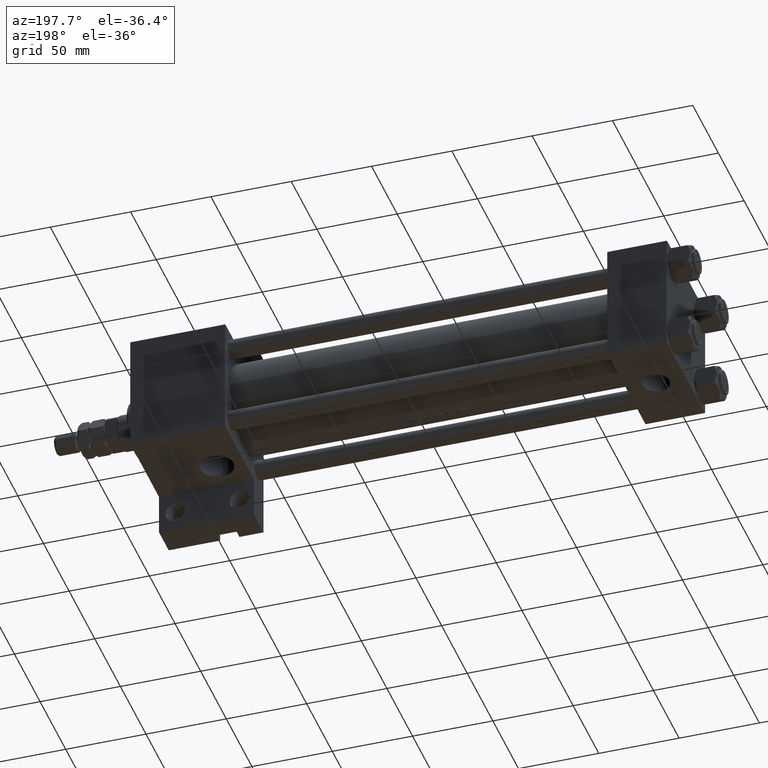
[diagram: clean part render]
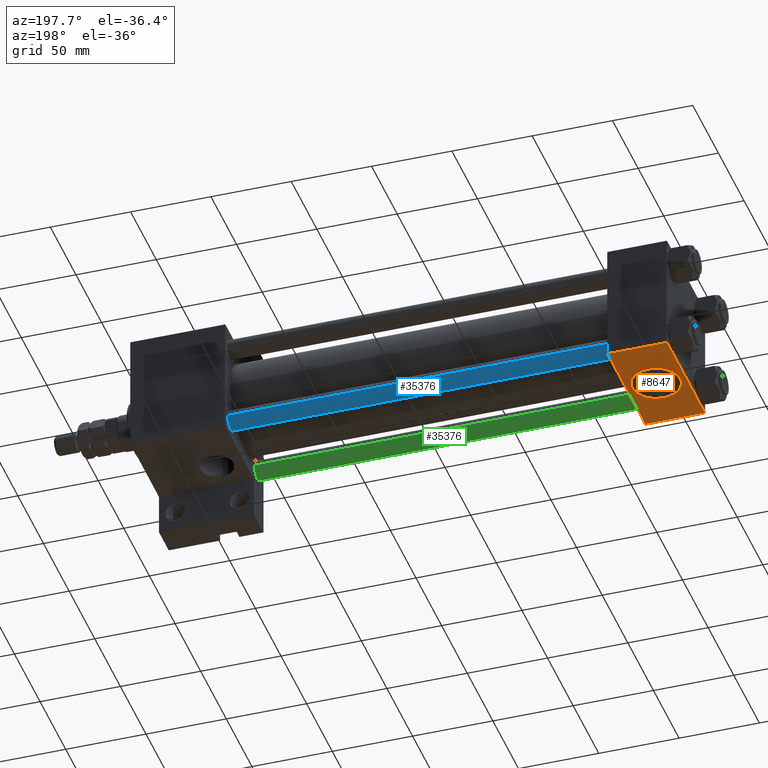
[diagram: same view with three faces highlighted in distinct colors, each labeled with its STEP entity id]
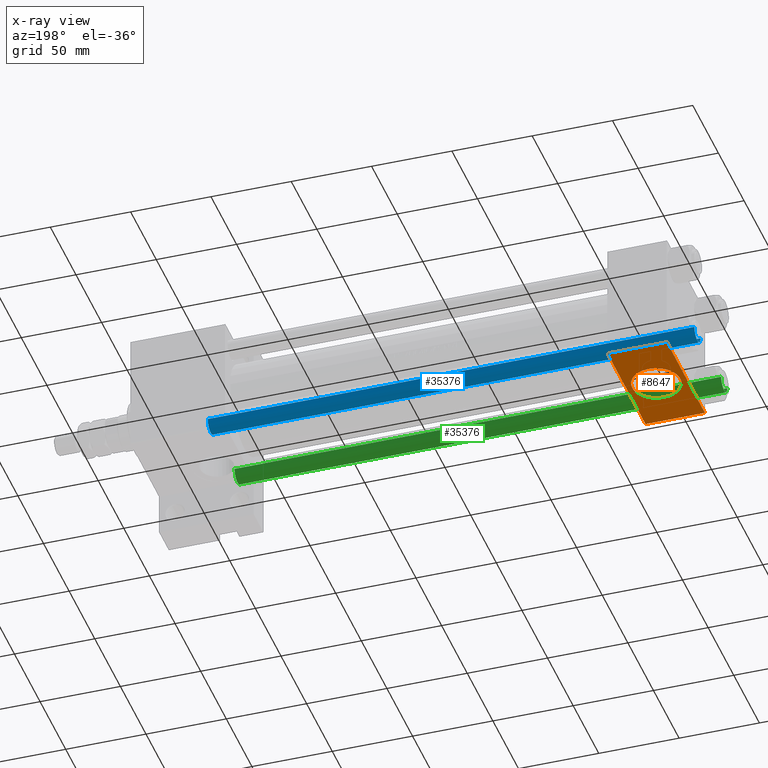
[diagram: x-ray of the same camera — body ghosted, the three highlighted faces saturated]
A machine part, auxiliary view with three faces highlighted in distinct colors.
The next image is the same camera in x-ray (body ghosted, the three faces saturated) — at least one of them is partly hidden behind the body in this view.
Their STEP definitions:

[orange] entity #8647 — the highlighted planar face has unit normal (0, 0, -1).
#1236 = AXIS2_PLACEMENT_3D ( 'NONE', #2236, #39045, #32575 ) ;
#1308 = CARTESIAN_POINT ( 'NONE',  ( 18.50000000000000000, 37.49999999999999289, 0.000000000000000000 ) ) ;
#2236 = CARTESIAN_POINT ( 'NONE',  ( 37.00000000000000000, 37.49999999999999289, 37.50000000000000000 ) ) ;
#2377 = EDGE_CURVE ( 'NONE', #43973, #38912, #40234, .T. ) ;
#2994 = CARTESIAN_POINT ( 'NONE',  ( 18.50000000000000000, 37.49999999999999289, 15.00000000000000178 ) ) ;
#5393 = LINE ( 'NONE', #20546, #36639 ) ;
#5772 = DIRECTION ( 'NONE',  ( 0.000000000000000000, 0.000000000000000000, 1.000000000000000000 ) ) ;
#5916 = DIRECTION ( 'NONE',  ( 0.000000000000000000, 0.000000000000000000, -1.000000000000000000 ) ) ;
#7005 = LINE ( 'NONE', #45736, #18680 ) ;
#7505 = CIRCLE ( 'NONE', #24187, 15.00000000000000178 ) ;
#7920 = CARTESIAN_POINT ( 'NONE',  ( 18.50000000000000000, 37.49999999999999289, 0.000000000000000000 ) ) ;
#8573 = CARTESIAN_POINT ( 'NONE',  ( 0.000000000000000000, 37.49999999999999289, 37.50000000000000000 ) ) ;
#8627 = VERTEX_POINT ( 'NONE', #31592 ) ;
#8647 = ADVANCED_FACE ( 'NONE', ( #47263, #28358 ), #36315, .T. ) ;
#10619 = VERTEX_POINT ( 'NONE', #26119 ) ;
#11641 = DIRECTION ( 'NONE',  ( 1.000000000000000000, 0.000000000000000000, 0.000000000000000000 ) ) ;
#12486 = DIRECTION ( 'NONE',  ( 0.000000000000000000, 1.000000000000000000, 0.000000000000000000 ) ) ;
#12754 = EDGE_LOOP ( 'NONE', ( #39817, #42628 ) ) ;
#15422 = EDGE_CURVE ( 'NONE', #38912, #8627, #5393, .T. ) ;
#15620 = DIRECTION ( 'NONE',  ( 0.000000000000000000, 1.000000000000000000, 0.000000000000000000 ) ) ;
#15791 = DIRECTION ( 'NONE',  ( 0.000000000000000000, 0.000000000000000000, -1.000000000000000000 ) ) ;
#17307 = DIRECTION ( 'NONE',  ( -1.000000000000000000, 0.000000000000000000, 0.000000000000000000 ) ) ;
#18317 = CARTESIAN_POINT ( 'NONE',  ( 18.50000000000000355, 37.49999999999999289, -15.00000000000000178 ) ) ;
#18680 = VECTOR ( 'NONE', #11641, 1000.000000000000000 ) ;
#20201 = AXIS2_PLACEMENT_3D ( 'NONE', #1308, #12486, #5772 ) ;
#20546 = CARTESIAN_POINT ( 'NONE',  ( 37.00000000000000000, 37.49999999999999289, -36.99999999999998579 ) ) ;
#20795 = EDGE_CURVE ( 'NONE', #23788, #46061, #26529, .T. ) ;
#21170 = EDGE_CURVE ( 'NONE', #46061, #23788, #7505, .T. ) ;
#23788 = VERTEX_POINT ( 'NONE', #2994 ) ;
#24187 = AXIS2_PLACEMENT_3D ( 'NONE', #7920, #15620, #30057 ) ;
#24706 = ORIENTED_EDGE ( 'NONE', *, *, #2377, .T. ) ;
#24832 = VECTOR ( 'NONE', #15791, 1000.000000000000000 ) ;
#25188 = EDGE_LOOP ( 'NONE', ( #24706, #38192, #39890, #25244 ) ) ;
#25244 = ORIENTED_EDGE ( 'NONE', *, *, #34216, .T. ) ;
#26119 = CARTESIAN_POINT ( 'NONE',  ( 0.000000000000000000, 37.49999999999999289, 37.00000000000000000 ) ) ;
#26529 = CIRCLE ( 'NONE', #20201, 15.00000000000000178 ) ;
#28358 = FACE_OUTER_BOUND ( 'NONE', #25188, .T. ) ;
#30057 = DIRECTION ( 'NONE',  ( 0.000000000000000000, 0.000000000000000000, 1.000000000000000000 ) ) ;
#31462 = CARTESIAN_POINT ( 'NONE',  ( 37.00000000000000000, 37.49999999999999289, 37.00000000000000000 ) ) ;
#31592 = CARTESIAN_POINT ( 'NONE',  ( 0.000000000000000000, 37.49999999999999289, -36.99999999999998579 ) ) ;
#32575 = DIRECTION ( 'NONE',  ( 0.000000000000000000, -0.000000000000000000, 1.000000000000000000 ) ) ;
#34216 = EDGE_CURVE ( 'NONE', #10619, #43973, #7005, .T. ) ;
#36315 = PLANE ( 'NONE',  #1236 ) ;
#36639 = VECTOR ( 'NONE', #17307, 1000.000000000000000 ) ;
#36735 = CARTESIAN_POINT ( 'NONE',  ( 37.00000000000000000, 37.49999999999999289, 37.50000000000000000 ) ) ;
#37680 = LINE ( 'NONE', #8573, #24832 ) ;
#38192 = ORIENTED_EDGE ( 'NONE', *, *, #15422, .T. ) ;
#38912 = VERTEX_POINT ( 'NONE', #39138 ) ;
#39045 = DIRECTION ( 'NONE',  ( -0.000000000000000000, 1.000000000000000000, 0.000000000000000000 ) ) ;
#39138 = CARTESIAN_POINT ( 'NONE',  ( 37.00000000000000000, 37.49999999999999289, -36.99999999999998579 ) ) ;
#39817 = ORIENTED_EDGE ( 'NONE', *, *, #20795, .F. ) ;
#39890 = ORIENTED_EDGE ( 'NONE', *, *, #40228, .F. ) ;
#40228 = EDGE_CURVE ( 'NONE', #10619, #8627, #37680, .T. ) ;
#40234 = LINE ( 'NONE', #36735, #41706 ) ;
#41706 = VECTOR ( 'NONE', #5916, 1000.000000000000000 ) ;
#42628 = ORIENTED_EDGE ( 'NONE', *, *, #21170, .F. ) ;
#43973 = VERTEX_POINT ( 'NONE', #31462 ) ;
#45736 = CARTESIAN_POINT ( 'NONE',  ( 37.00000000000000000, 37.49999999999999289, 37.00000000000000000 ) ) ;
#46061 = VERTEX_POINT ( 'NONE', #18317 ) ;
#47263 = FACE_BOUND ( 'NONE', #12754, .T. ) ;

[blue] entity #35376 — the highlighted cylindrical surface (edge-blend (fillet) strip) has radius 6 mm, axis along (-1, -0, 0).
#1230 = CIRCLE ( 'NONE', #17136, 6.000000000000000888 ) ;
#1759 = CARTESIAN_POINT ( 'NONE',  ( 6.000000000000000888, 7.347880794884120722E-16, 0.4999999999999449329 ) ) ;
#1835 = VERTEX_POINT ( 'NONE', #23156 ) ;
#3181 = EDGE_LOOP ( 'NONE', ( #41210, #48931, #8118, #27016 ) ) ;
#5608 = CARTESIAN_POINT ( 'NONE',  ( -6.000000000000000888, 0.000000000000000000, 304.0000000000000000 ) ) ;
#8118 = ORIENTED_EDGE ( 'NONE', *, *, #14355, .T. ) ;
#8737 = FACE_OUTER_BOUND ( 'NONE', #3181, .T. ) ;
#14355 = EDGE_CURVE ( 'NONE', #1835, #30058, #34041, .T. ) ;
#14779 = AXIS2_PLACEMENT_3D ( 'NONE', #31362, #42815, #35603 ) ;
#16097 = EDGE_CURVE ( 'NONE', #34842, #23646, #19296, .T. ) ;
#17136 = AXIS2_PLACEMENT_3D ( 'NONE', #42725, #38977, #20814 ) ;
#19296 = LINE ( 'NONE', #37966, #28709 ) ;
#19553 = DIRECTION ( 'NONE',  ( -0.000000000000000000, -0.000000000000000000, -1.000000000000000000 ) ) ;
#20814 = DIRECTION ( 'NONE',  ( 1.000000000000000000, 0.000000000000000000, 0.000000000000000000 ) ) ;
#23156 = CARTESIAN_POINT ( 'NONE',  ( -6.000000000000000888, 0.000000000000000000, 303.5000000000000000 ) ) ;
#23646 = VERTEX_POINT ( 'NONE', #1759 ) ;
#25157 = CIRCLE ( 'NONE', #31505, 6.000000000000000888 ) ;
#25317 = CYLINDRICAL_SURFACE ( 'NONE', #14779, 6.000000000000000888 ) ;
#27016 = ORIENTED_EDGE ( 'NONE', *, *, #33562, .T. ) ;
#27980 = DIRECTION ( 'NONE',  ( -0.000000000000000000, -0.000000000000000000, -1.000000000000000000 ) ) ;
#28709 = VECTOR ( 'NONE', #19553, 1000.000000000000000 ) ;
#30058 = VERTEX_POINT ( 'NONE', #31485 ) ;
#30272 = CARTESIAN_POINT ( 'NONE',  ( 0.000000000000000000, 0.000000000000000000, 303.5000000000000000 ) ) ;
#31362 = CARTESIAN_POINT ( 'NONE',  ( 0.000000000000000000, 0.000000000000000000, 304.0000000000000000 ) ) ;
#31485 = CARTESIAN_POINT ( 'NONE',  ( -6.000000000000000888, 0.000000000000000000, 0.4999999999999449329 ) ) ;
#31505 = AXIS2_PLACEMENT_3D ( 'NONE', #30272, #42465, #34259 ) ;
#33562 = EDGE_CURVE ( 'NONE', #30058, #23646, #1230, .T. ) ;
#34041 = LINE ( 'NONE', #5608, #34837 ) ;
#34107 = CARTESIAN_POINT ( 'NONE',  ( 6.000000000000000888, 7.347880794884120722E-16, 303.5000000000000000 ) ) ;
#34259 = DIRECTION ( 'NONE',  ( 1.000000000000000000, 0.000000000000000000, 0.000000000000000000 ) ) ;
#34837 = VECTOR ( 'NONE', #27980, 1000.000000000000000 ) ;
#34842 = VERTEX_POINT ( 'NONE', #34107 ) ;
#35376 = ADVANCED_FACE ( 'NONE', ( #8737 ), #25317, .T. ) ;
#35603 = DIRECTION ( 'NONE',  ( -1.000000000000000000, 0.000000000000000000, 0.000000000000000000 ) ) ;
#37966 = CARTESIAN_POINT ( 'NONE',  ( 6.000000000000000888, 7.347880794884120722E-16, 304.0000000000000000 ) ) ;
#38977 = DIRECTION ( 'NONE',  ( -0.000000000000000000, -0.000000000000000000, 1.000000000000000000 ) ) ;
#39853 = EDGE_CURVE ( 'NONE', #34842, #1835, #25157, .T. ) ;
#41210 = ORIENTED_EDGE ( 'NONE', *, *, #16097, .F. ) ;
#42465 = DIRECTION ( 'NONE',  ( 0.000000000000000000, 0.000000000000000000, -1.000000000000000000 ) ) ;
#42725 = CARTESIAN_POINT ( 'NONE',  ( 0.000000000000000000, 0.000000000000000000, 0.4999999999999449329 ) ) ;
#42815 = DIRECTION ( 'NONE',  ( -0.000000000000000000, -0.000000000000000000, -1.000000000000000000 ) ) ;
#48931 = ORIENTED_EDGE ( 'NONE', *, *, #39853, .T. ) ;

[green] entity #35376 — the highlighted cylindrical surface (edge-blend (fillet) strip) has radius 6 mm, axis along (1, 0, 0).
#1230 = CIRCLE ( 'NONE', #17136, 6.000000000000000888 ) ;
#1759 = CARTESIAN_POINT ( 'NONE',  ( 6.000000000000000888, 7.347880794884120722E-16, 0.4999999999999449329 ) ) ;
#1835 = VERTEX_POINT ( 'NONE', #23156 ) ;
#3181 = EDGE_LOOP ( 'NONE', ( #41210, #48931, #8118, #27016 ) ) ;
#5608 = CARTESIAN_POINT ( 'NONE',  ( -6.000000000000000888, 0.000000000000000000, 304.0000000000000000 ) ) ;
#8118 = ORIENTED_EDGE ( 'NONE', *, *, #14355, .T. ) ;
#8737 = FACE_OUTER_BOUND ( 'NONE', #3181, .T. ) ;
#14355 = EDGE_CURVE ( 'NONE', #1835, #30058, #34041, .T. ) ;
#14779 = AXIS2_PLACEMENT_3D ( 'NONE', #31362, #42815, #35603 ) ;
#16097 = EDGE_CURVE ( 'NONE', #34842, #23646, #19296, .T. ) ;
#17136 = AXIS2_PLACEMENT_3D ( 'NONE', #42725, #38977, #20814 ) ;
#19296 = LINE ( 'NONE', #37966, #28709 ) ;
#19553 = DIRECTION ( 'NONE',  ( -0.000000000000000000, -0.000000000000000000, -1.000000000000000000 ) ) ;
#20814 = DIRECTION ( 'NONE',  ( 1.000000000000000000, 0.000000000000000000, 0.000000000000000000 ) ) ;
#23156 = CARTESIAN_POINT ( 'NONE',  ( -6.000000000000000888, 0.000000000000000000, 303.5000000000000000 ) ) ;
#23646 = VERTEX_POINT ( 'NONE', #1759 ) ;
#25157 = CIRCLE ( 'NONE', #31505, 6.000000000000000888 ) ;
#25317 = CYLINDRICAL_SURFACE ( 'NONE', #14779, 6.000000000000000888 ) ;
#27016 = ORIENTED_EDGE ( 'NONE', *, *, #33562, .T. ) ;
#27980 = DIRECTION ( 'NONE',  ( -0.000000000000000000, -0.000000000000000000, -1.000000000000000000 ) ) ;
#28709 = VECTOR ( 'NONE', #19553, 1000.000000000000000 ) ;
#30058 = VERTEX_POINT ( 'NONE', #31485 ) ;
#30272 = CARTESIAN_POINT ( 'NONE',  ( 0.000000000000000000, 0.000000000000000000, 303.5000000000000000 ) ) ;
#31362 = CARTESIAN_POINT ( 'NONE',  ( 0.000000000000000000, 0.000000000000000000, 304.0000000000000000 ) ) ;
#31485 = CARTESIAN_POINT ( 'NONE',  ( -6.000000000000000888, 0.000000000000000000, 0.4999999999999449329 ) ) ;
#31505 = AXIS2_PLACEMENT_3D ( 'NONE', #30272, #42465, #34259 ) ;
#33562 = EDGE_CURVE ( 'NONE', #30058, #23646, #1230, .T. ) ;
#34041 = LINE ( 'NONE', #5608, #34837 ) ;
#34107 = CARTESIAN_POINT ( 'NONE',  ( 6.000000000000000888, 7.347880794884120722E-16, 303.5000000000000000 ) ) ;
#34259 = DIRECTION ( 'NONE',  ( 1.000000000000000000, 0.000000000000000000, 0.000000000000000000 ) ) ;
#34837 = VECTOR ( 'NONE', #27980, 1000.000000000000000 ) ;
#34842 = VERTEX_POINT ( 'NONE', #34107 ) ;
#35376 = ADVANCED_FACE ( 'NONE', ( #8737 ), #25317, .T. ) ;
#35603 = DIRECTION ( 'NONE',  ( -1.000000000000000000, 0.000000000000000000, 0.000000000000000000 ) ) ;
#37966 = CARTESIAN_POINT ( 'NONE',  ( 6.000000000000000888, 7.347880794884120722E-16, 304.0000000000000000 ) ) ;
#38977 = DIRECTION ( 'NONE',  ( -0.000000000000000000, -0.000000000000000000, 1.000000000000000000 ) ) ;
#39853 = EDGE_CURVE ( 'NONE', #34842, #1835, #25157, .T. ) ;
#41210 = ORIENTED_EDGE ( 'NONE', *, *, #16097, .F. ) ;
#42465 = DIRECTION ( 'NONE',  ( 0.000000000000000000, 0.000000000000000000, -1.000000000000000000 ) ) ;
#42725 = CARTESIAN_POINT ( 'NONE',  ( 0.000000000000000000, 0.000000000000000000, 0.4999999999999449329 ) ) ;
#42815 = DIRECTION ( 'NONE',  ( -0.000000000000000000, -0.000000000000000000, -1.000000000000000000 ) ) ;
#48931 = ORIENTED_EDGE ( 'NONE', *, *, #39853, .T. ) ;